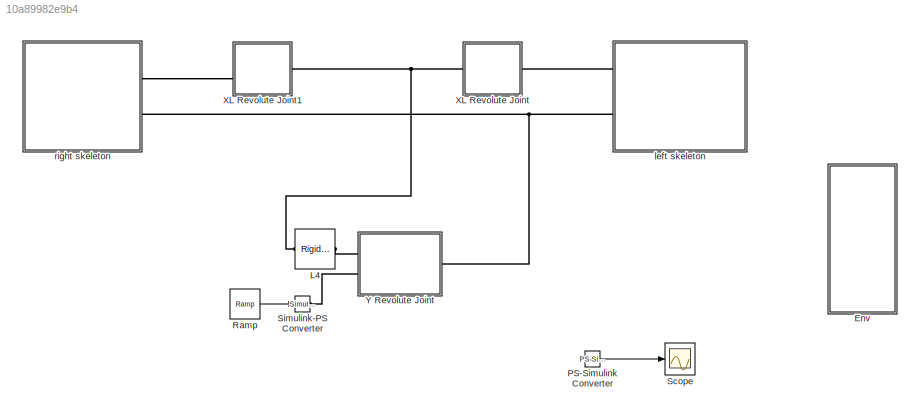
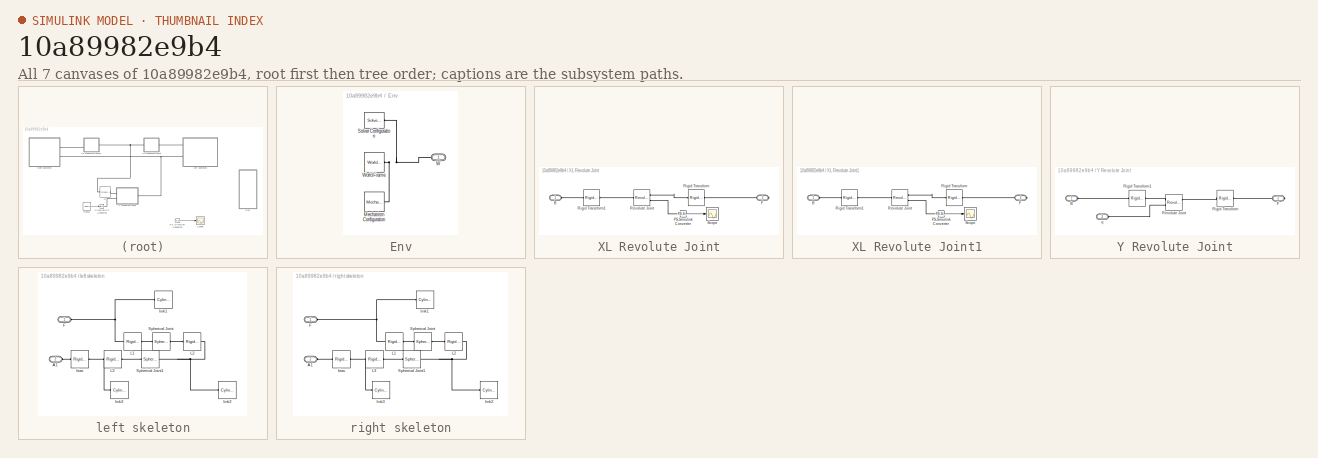
[diagram: thumbnail index - all 7 canvases of the model, root first then tree order]
MODEL slx_10a89982e9b4
KIND model
CONFIG AbsTol = 1e-3
CONFIG EnableMultiTasking = on
CONFIG FixedStep = auto
CONFIG MaxStep = auto
CONFIG MinStep = auto
CONFIG RelTol = 1e-3
CONFIG SampleTimeConstraint = Unconstrained
CONFIG SolverName = ode15s
CONFIG StartTime = 0.0
CONFIG StopTime = 10.0
BLOCK [SubSystem] Env
  Ports = [0, 0, 0, 0, 0, 0, 1]
  RequestExecContextInheritance = off
BLOCK [Reference] Env/Mechanism Configuration  REF=sm_lib/Utilities/Mechanism
Configuration
  Ports = [0, 0, 0, 0, 0, 0, 1]
  SourceBlock = sm_lib/Utilities/Mechanism\nConfiguration
  SourceProductBaseCode = MS
  SourceType = Mechanism\nConfiguration
BLOCK [Reference] Env/Solver Configuration  REF=nesl_utility/Solver
Configuration
  Ports = [0, 0, 0, 0, 0, 0, 1]
  SourceBlock = nesl_utility/Solver\nConfiguration
  SourceProductBaseCode = PW,SS
  SourceType = Solver\nConfiguration
BLOCK [PMIOPort] Env/W
  Side = Right
BLOCK [Reference] Env/World Frame  REF=sm_lib/Frames and
Transforms/World Frame
  Ports = [0, 0, 0, 0, 0, 0, 1]
  SourceBlock = sm_lib/Frames and\nTransforms/World Frame
  SourceProductBaseCode = MS
  SourceType = World Frame
BLOCK [Reference] L4  REF=sm_lib/Frames and
Transforms/Rigid
Transform
  Ports = [0, 0, 0, 0, 0, 1, 1]
  SourceBlock = sm_lib/Frames and\nTransforms/Rigid\nTransform
  SourceProductBaseCode = MS
  SourceType = Rigid\nTransform
BLOCK [Reference] PS-Simulink Converter  REF=nesl_utility/PS-Simulink
Converter
  Ports = [0, 1, 0, 0, 0, 1]
  SourceBlock = nesl_utility/PS-Simulink\nConverter
  SourceProductBaseCode = PW,SS
  SourceType = PS-Simulink\nConverter
BLOCK [Reference] Ramp  REF=simulink/Sources/Ramp
  Ports = [0, 1]
  SourceBlock = simulink/Sources/Ramp
  SourceProductBaseCode = SL
  SourceType = Ramp
BLOCK [Scope] Scope
  Floating = off
  NumInputPorts = 1
  Ports = [1]
  ScopeSpecificationString = Simulink.scopes.TimeScopeBlockCfg('CurrentConfiguration', extmgr.ConfigurationSet(extmgr.Configuration('Core','General UI',true),extmgr.Configuration('Core','Source UI',true),extmgr.Configuration('Sources','WiredSimulink',true),extmgr.Configuration('Visuals','Time Domain',true),extmgr.Configuration('Tools','Plot Navigation',true),extmgr.Configuration('Tools','Measurements',true,'Version','2019b'))...<+19ch>
BLOCK [Reference] Simulink-PS Converter  REF=nesl_utility/Simulink-PS
Converter
  Ports = [1, 0, 0, 0, 0, 0, 1]
  SourceBlock = nesl_utility/Simulink-PS\nConverter
  SourceProductBaseCode = PW,SS
  SourceType = Simulink-PS\nConverter
BLOCK [SubSystem] XL Revolute Joint
  Ports = [0, 0, 0, 0, 0, 1, 1]
  RequestExecContextInheritance = off
BLOCK [PMIOPort] XL Revolute Joint/B
  Side = Left
BLOCK [PMIOPort] XL Revolute Joint/F
  Port = 2
  Side = Right
BLOCK [Reference] XL Revolute Joint/PS-Simulink Converter  REF=nesl_utility/PS-Simulink
Converter
  Ports = [0, 1, 0, 0, 0, 1]
  SourceBlock = nesl_utility/PS-Simulink\nConverter
  SourceProductBaseCode = PW,SS
  SourceType = PS-Simulink\nConverter
BLOCK [Reference] XL Revolute Joint/Revolute Joint  REF=sm_lib/Joints/Revolute Joint
  Ports = [0, 0, 0, 0, 0, 1, 2]
  SourceBlock = sm_lib/Joints/Revolute Joint
  SourceProductBaseCode = MS
  SourceType = Revolute Joint
BLOCK [Reference] XL Revolute Joint/Rigid Transform  REF=sm_lib/Frames and
Transforms/Rigid
Transform
  Ports = [0, 0, 0, 0, 0, 1, 1]
  SourceBlock = sm_lib/Frames and\nTransforms/Rigid\nTransform
  SourceProductBaseCode = MS
  SourceType = Rigid\nTransform
BLOCK [Reference] XL Revolute Joint/Rigid Transform1  REF=sm_lib/Frames and
Transforms/Rigid
Transform
  Ports = [0, 0, 0, 0, 0, 1, 1]
  SourceBlock = sm_lib/Frames and\nTransforms/Rigid\nTransform
  SourceProductBaseCode = MS
  SourceType = Rigid\nTransform
BLOCK [Scope] XL Revolute Joint/Scope
  Floating = off
  NumInputPorts = 1
  Ports = [1]
  ScopeSpecificationString = Simulink.scopes.TimeScopeBlockCfg('CurrentConfiguration', extmgr.ConfigurationSet(extmgr.Configuration('Core','General UI',true),extmgr.Configuration('Core','Source UI',true),extmgr.Configuration('Sources','WiredSimulink',true,'DataLoggingVariableName','ScopeData1'),extmgr.Configuration('Visuals','Time Domain',true,'SerializedDisplays',{struct('MinYLimReal','-0.38352','MaxYLimReal','0.76777','YLab...<+1487ch>
BLOCK [SubSystem] XL Revolute Joint1
  Ports = [0, 0, 0, 0, 0, 1, 1]
  RequestExecContextInheritance = off
BLOCK [PMIOPort] XL Revolute Joint1/B
  Side = Left
BLOCK [PMIOPort] XL Revolute Joint1/F
  Port = 2
  Side = Right
BLOCK [Reference] XL Revolute Joint1/PS-Simulink Converter  REF=nesl_utility/PS-Simulink
Converter
  Ports = [0, 1, 0, 0, 0, 1]
  SourceBlock = nesl_utility/PS-Simulink\nConverter
  SourceProductBaseCode = PW,SS
  SourceType = PS-Simulink\nConverter
BLOCK [Reference] XL Revolute Joint1/Revolute Joint  REF=sm_lib/Joints/Revolute Joint
  Ports = [0, 0, 0, 0, 0, 1, 2]
  SourceBlock = sm_lib/Joints/Revolute Joint
  SourceProductBaseCode = MS
  SourceType = Revolute Joint
BLOCK [Reference] XL Revolute Joint1/Rigid Transform  REF=sm_lib/Frames and
Transforms/Rigid
Transform
  Ports = [0, 0, 0, 0, 0, 1, 1]
  SourceBlock = sm_lib/Frames and\nTransforms/Rigid\nTransform
  SourceProductBaseCode = MS
  SourceType = Rigid\nTransform
BLOCK [Reference] XL Revolute Joint1/Rigid Transform1  REF=sm_lib/Frames and
Transforms/Rigid
Transform
  Ports = [0, 0, 0, 0, 0, 1, 1]
  SourceBlock = sm_lib/Frames and\nTransforms/Rigid\nTransform
  SourceProductBaseCode = MS
  SourceType = Rigid\nTransform
BLOCK [Scope] XL Revolute Joint1/Scope
  Floating = off
  NumInputPorts = 1
  Ports = [1]
  ScopeSpecificationString = Simulink.scopes.TimeScopeBlockCfg('CurrentConfiguration', extmgr.ConfigurationSet(extmgr.Configuration('Core','General UI',true),extmgr.Configuration('Core','Source UI',true),extmgr.Configuration('Sources','WiredSimulink',true,'DataLoggingVariableName','ScopeData1'),extmgr.Configuration('Visuals','Time Domain',true,'SerializedDisplays',{struct('MinYLimReal','-0.38352','MaxYLimReal','0.76777','YLab...<+1466ch>
BLOCK [SubSystem] Y Revolute Joint
  Ports = [0, 0, 0, 0, 0, 2, 1]
  RequestExecContextInheritance = off
BLOCK [PMIOPort] Y Revolute Joint/B
  Side = Left
BLOCK [PMIOPort] Y Revolute Joint/F
  Port = 2
  Side = Right
BLOCK [Reference] Y Revolute Joint/Revolute Joint  REF=sm_lib/Joints/Revolute Joint
  Ports = [0, 0, 0, 0, 0, 2, 2]
  SourceBlock = sm_lib/Joints/Revolute Joint
  SourceProductBaseCode = MS
  SourceType = Revolute Joint
BLOCK [Reference] Y Revolute Joint/Rigid Transform  REF=sm_lib/Frames and
Transforms/Rigid
Transform
  Ports = [0, 0, 0, 0, 0, 1, 1]
  SourceBlock = sm_lib/Frames and\nTransforms/Rigid\nTransform
  SourceProductBaseCode = MS
  SourceType = Rigid\nTransform
BLOCK [Reference] Y Revolute Joint/Rigid Transform1  REF=sm_lib/Frames and
Transforms/Rigid
Transform
  Ports = [0, 0, 0, 0, 0, 1, 1]
  SourceBlock = sm_lib/Frames and\nTransforms/Rigid\nTransform
  SourceProductBaseCode = MS
  SourceType = Rigid\nTransform
BLOCK [PMIOPort] Y Revolute Joint/q
  Port = 3
  Side = Left
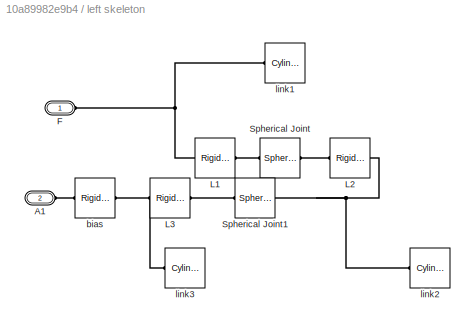
BLOCK [SubSystem] left skeleton
  Ports = [0, 0, 0, 0, 0, 2]
  RequestExecContextInheritance = off
BLOCK [PMIOPort] left skeleton/A1
  Port = 2
  Side = Left
BLOCK [PMIOPort] left skeleton/F
  Side = Left
BLOCK [Reference] left skeleton/L1  REF=sm_lib/Frames and
Transforms/Rigid
Transform
  Ports = [0, 0, 0, 0, 0, 1, 1]
  SourceBlock = sm_lib/Frames and\nTransforms/Rigid\nTransform
  SourceProductBaseCode = MS
  SourceType = Rigid\nTransform
BLOCK [Reference] left skeleton/L2  REF=sm_lib/Frames and
Transforms/Rigid
Transform
  Ports = [0, 0, 0, 0, 0, 1, 1]
  SourceBlock = sm_lib/Frames and\nTransforms/Rigid\nTransform
  SourceProductBaseCode = MS
  SourceType = Rigid\nTransform
BLOCK [Reference] left skeleton/L3  REF=sm_lib/Frames and
Transforms/Rigid
Transform
  Ports = [0, 0, 0, 0, 0, 1, 1]
  SourceBlock = sm_lib/Frames and\nTransforms/Rigid\nTransform
  SourceProductBaseCode = MS
  SourceType = Rigid\nTransform
BLOCK [Reference] left skeleton/Spherical Joint  REF=sm_lib/Joints/Spherical
Joint
  Ports = [0, 0, 0, 0, 0, 1, 1]
  SourceBlock = sm_lib/Joints/Spherical\nJoint
  SourceProductBaseCode = MS
  SourceType = Spherical\nJoint
BLOCK [Reference] left skeleton/Spherical Joint1  REF=sm_lib/Joints/Spherical
Joint
  Ports = [0, 0, 0, 0, 0, 1, 1]
  SourceBlock = sm_lib/Joints/Spherical\nJoint
  SourceProductBaseCode = MS
  SourceType = Spherical\nJoint
BLOCK [Reference] left skeleton/bias  REF=sm_lib/Frames and
Transforms/Rigid
Transform
  Ports = [0, 0, 0, 0, 0, 1, 1]
  SourceBlock = sm_lib/Frames and\nTransforms/Rigid\nTransform
  SourceProductBaseCode = MS
  SourceType = Rigid\nTransform
BLOCK [Reference] left skeleton/link1  REF=sm_lib/Body Elements/Cylindrical Solid
  Ports = [0, 0, 0, 0, 0, 1]
  SourceBlock = sm_lib/Body Elements/Cylindrical Solid
  SourceProductBaseCode = MS
  SourceType = Cylindrical Solid
BLOCK [Reference] left skeleton/link2  REF=sm_lib/Body Elements/Cylindrical Solid
  Ports = [0, 0, 0, 0, 0, 1]
  SourceBlock = sm_lib/Body Elements/Cylindrical Solid
  SourceProductBaseCode = MS
  SourceType = Cylindrical Solid
BLOCK [Reference] left skeleton/link3  REF=sm_lib/Body Elements/Cylindrical Solid
  Ports = [0, 0, 0, 0, 0, 1]
  SourceBlock = sm_lib/Body Elements/Cylindrical Solid
  SourceProductBaseCode = MS
  SourceType = Cylindrical Solid
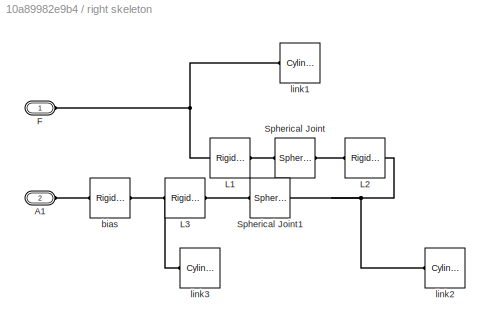
BLOCK [SubSystem] right skeleton
  Ports = [0, 0, 0, 0, 0, 2]
  RequestExecContextInheritance = off
BLOCK [PMIOPort] right skeleton/A1
  Port = 2
  Side = Left
BLOCK [PMIOPort] right skeleton/F
  Side = Left
BLOCK [Reference] right skeleton/L1  REF=sm_lib/Frames and
Transforms/Rigid
Transform
  Ports = [0, 0, 0, 0, 0, 1, 1]
  SourceBlock = sm_lib/Frames and\nTransforms/Rigid\nTransform
  SourceProductBaseCode = MS
  SourceType = Rigid\nTransform
BLOCK [Reference] right skeleton/L2  REF=sm_lib/Frames and
Transforms/Rigid
Transform
  Ports = [0, 0, 0, 0, 0, 1, 1]
  SourceBlock = sm_lib/Frames and\nTransforms/Rigid\nTransform
  SourceProductBaseCode = MS
  SourceType = Rigid\nTransform
BLOCK [Reference] right skeleton/L3  REF=sm_lib/Frames and
Transforms/Rigid
Transform
  Ports = [0, 0, 0, 0, 0, 1, 1]
  SourceBlock = sm_lib/Frames and\nTransforms/Rigid\nTransform
  SourceProductBaseCode = MS
  SourceType = Rigid\nTransform
BLOCK [Reference] right skeleton/Spherical Joint  REF=sm_lib/Joints/Spherical
Joint
  Ports = [0, 0, 0, 0, 0, 1, 1]
  SourceBlock = sm_lib/Joints/Spherical\nJoint
  SourceProductBaseCode = MS
  SourceType = Spherical\nJoint
BLOCK [Reference] right skeleton/Spherical Joint1  REF=sm_lib/Joints/Spherical
Joint
  Ports = [0, 0, 0, 0, 0, 1, 1]
  SourceBlock = sm_lib/Joints/Spherical\nJoint
  SourceProductBaseCode = MS
  SourceType = Spherical\nJoint
BLOCK [Reference] right skeleton/bias  REF=sm_lib/Frames and
Transforms/Rigid
Transform
  Ports = [0, 0, 0, 0, 0, 1, 1]
  SourceBlock = sm_lib/Frames and\nTransforms/Rigid\nTransform
  SourceProductBaseCode = MS
  SourceType = Rigid\nTransform
BLOCK [Reference] right skeleton/link1  REF=sm_lib/Body Elements/Cylindrical Solid
  Ports = [0, 0, 0, 0, 0, 1]
  SourceBlock = sm_lib/Body Elements/Cylindrical Solid
  SourceProductBaseCode = MS
  SourceType = Cylindrical Solid
BLOCK [Reference] right skeleton/link2  REF=sm_lib/Body Elements/Cylindrical Solid
  Ports = [0, 0, 0, 0, 0, 1]
  SourceBlock = sm_lib/Body Elements/Cylindrical Solid
  SourceProductBaseCode = MS
  SourceType = Cylindrical Solid
BLOCK [Reference] right skeleton/link3  REF=sm_lib/Body Elements/Cylindrical Solid
  Ports = [0, 0, 0, 0, 0, 1]
  SourceBlock = sm_lib/Body Elements/Cylindrical Solid
  SourceProductBaseCode = MS
  SourceType = Cylindrical Solid
LINE PS-Simulink Converter:1 -> Scope:1
LINE Ramp:1 -> Simulink-PS Converter:1
LINE XL Revolute Joint/PS-Simulink Converter:1 -> XL Revolute Joint/Scope:1
LINE XL Revolute Joint1/PS-Simulink Converter:1 -> XL Revolute Joint1/Scope:1
PNET net1: Env/Mechanism Configuration:RConn1 -- Env/Solver Configuration:RConn1 -- Env/W:RConn1 -- Env/World Frame:RConn1
PNET net2: L4:LConn1 -- XL Revolute Joint1:LConn1 -- XL Revolute Joint:LConn1
PLINE L4:RConn1 -- Y Revolute Joint:LConn1
PLINE Simulink-PS Converter:RConn1 -- Y Revolute Joint:LConn2
PLINE XL Revolute Joint/B:RConn1 -- XL Revolute Joint/Rigid Transform1:LConn1
PLINE XL Revolute Joint/F:RConn1 -- XL Revolute Joint/Rigid Transform:RConn1
PLINE XL Revolute Joint/PS-Simulink Converter:LConn1 -- XL Revolute Joint/Revolute Joint:RConn2
PLINE XL Revolute Joint/Revolute Joint:LConn1 -- XL Revolute Joint/Rigid Transform1:RConn1
PLINE XL Revolute Joint/Revolute Joint:RConn1 -- XL Revolute Joint/Rigid Transform:LConn1
PLINE XL Revolute Joint1/B:RConn1 -- XL Revolute Joint1/Rigid Transform1:LConn1
PLINE XL Revolute Joint1/F:RConn1 -- XL Revolute Joint1/Rigid Transform:RConn1
PLINE XL Revolute Joint1/PS-Simulink Converter:LConn1 -- XL Revolute Joint1/Revolute Joint:RConn2
PLINE XL Revolute Joint1/Revolute Joint:LConn1 -- XL Revolute Joint1/Rigid Transform1:RConn1
PLINE XL Revolute Joint1/Revolute Joint:RConn1 -- XL Revolute Joint1/Rigid Transform:LConn1
PLINE XL Revolute Joint1:RConn1 -- right skeleton:LConn1
PLINE XL Revolute Joint:RConn1 -- left skeleton:LConn1
PLINE Y Revolute Joint/B:RConn1 -- Y Revolute Joint/Rigid Transform1:LConn1
PLINE Y Revolute Joint/F:RConn1 -- Y Revolute Joint/Rigid Transform:RConn1
PLINE Y Revolute Joint/Revolute Joint:LConn1 -- Y Revolute Joint/Rigid Transform1:RConn1
PLINE Y Revolute Joint/Revolute Joint:LConn2 -- Y Revolute Joint/q:RConn1
PLINE Y Revolute Joint/Revolute Joint:RConn1 -- Y Revolute Joint/Rigid Transform:LConn1
PNET net3: Y Revolute Joint:RConn1 -- left skeleton:LConn2 -- right skeleton:LConn2
PLINE left skeleton/A1:RConn1 -- left skeleton/bias:LConn1
PNET net4: left skeleton/F:RConn1 -- left skeleton/L1:LConn1 -- left skeleton/link1:LConn1
PLINE left skeleton/L1:RConn1 -- left skeleton/Spherical Joint:LConn1
PNET net5: left skeleton/L2:LConn1 -- left skeleton/Spherical Joint1:RConn1 -- left skeleton/link2:LConn1
PLINE left skeleton/L2:RConn1 -- left skeleton/Spherical Joint:RConn1
PNET net6: left skeleton/L3:LConn1 -- left skeleton/bias:RConn1 -- left skeleton/link3:LConn1
PLINE left skeleton/L3:RConn1 -- left skeleton/Spherical Joint1:LConn1
PLINE right skeleton/A1:RConn1 -- right skeleton/bias:LConn1
PNET net7: right skeleton/F:RConn1 -- right skeleton/L1:LConn1 -- right skeleton/link1:LConn1
PLINE right skeleton/L1:RConn1 -- right skeleton/Spherical Joint:LConn1
PNET net8: right skeleton/L2:LConn1 -- right skeleton/Spherical Joint1:RConn1 -- right skeleton/link2:LConn1
PLINE right skeleton/L2:RConn1 -- right skeleton/Spherical Joint:RConn1
PNET net9: right skeleton/L3:LConn1 -- right skeleton/bias:RConn1 -- right skeleton/link3:LConn1
PLINE right skeleton/L3:RConn1 -- right skeleton/Spherical Joint1:LConn1
note: PNET lines group multi-terminal physical nets as a canonical sorted terminal list (undirected conserving connections); 2-terminal nets keep the pairwise PLINE form
